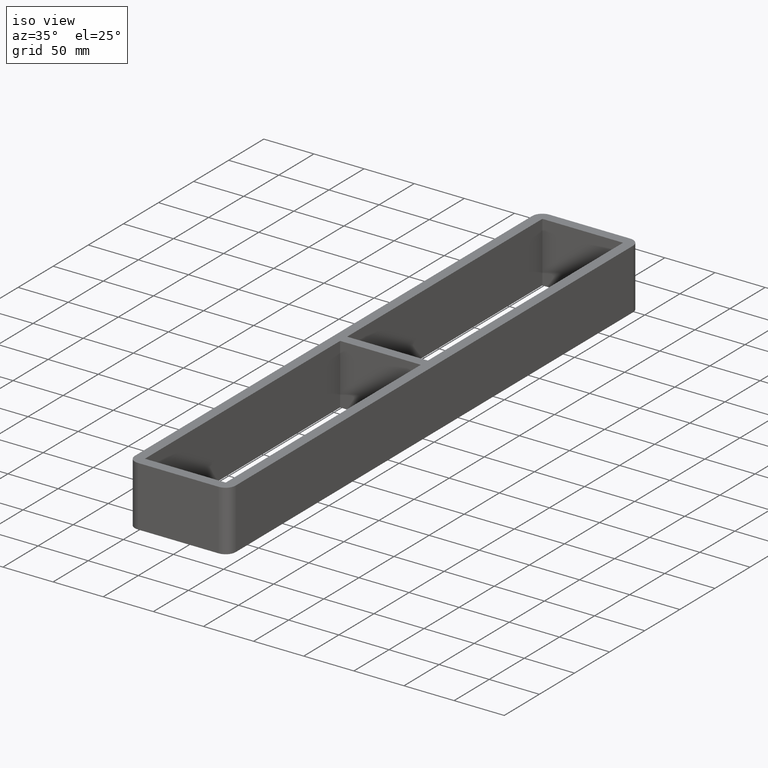
[diagram: clean part render]
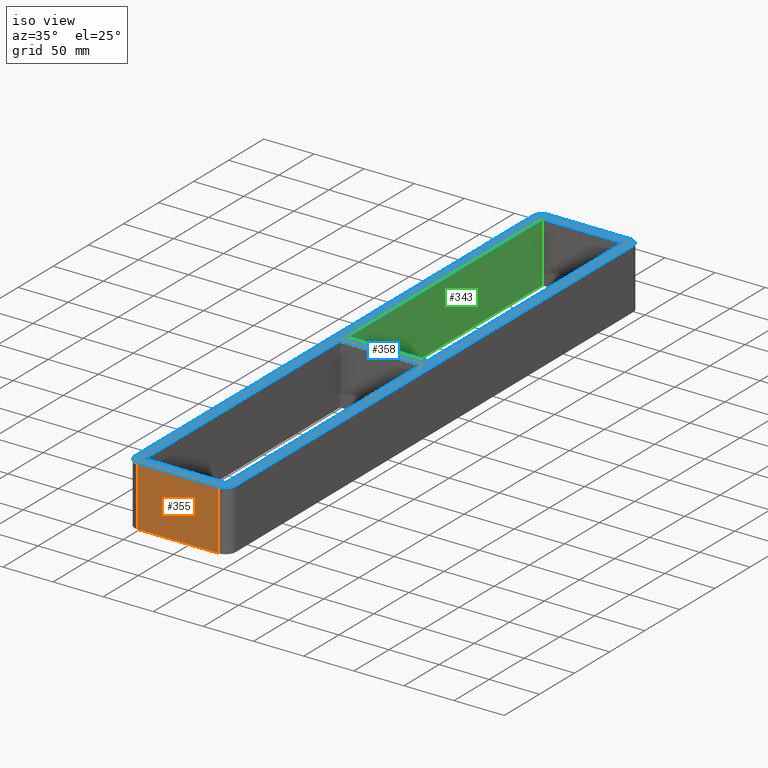
[diagram: same view with three faces highlighted in distinct colors, each labeled with its STEP entity id]
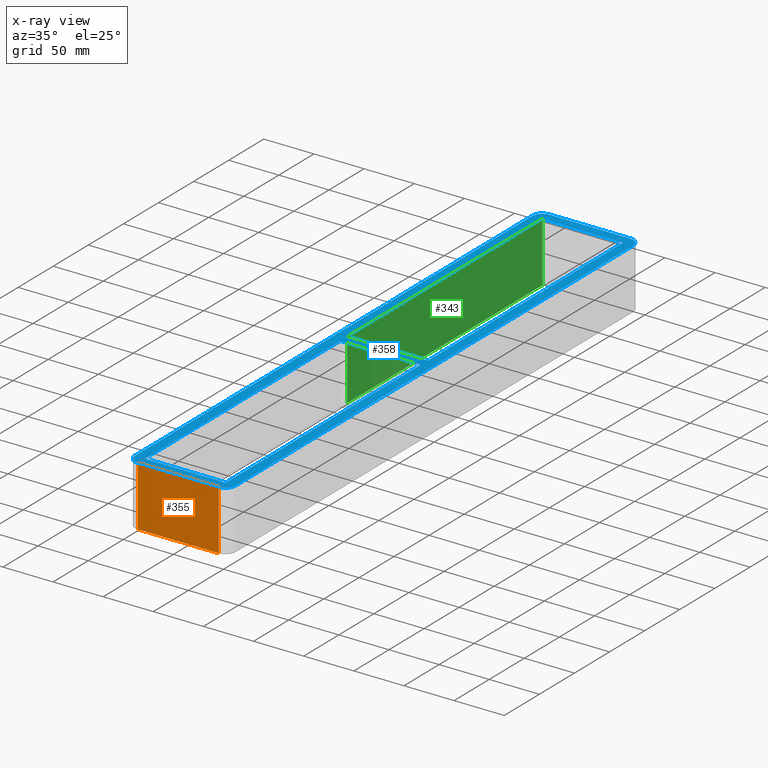
[diagram: x-ray of the same camera — body ghosted, the three highlighted faces saturated]
A machine part, iso view with three faces highlighted in distinct colors.
The next image is the same camera in x-ray (body ghosted, the three faces saturated) — at least one of them is partly hidden behind the body in this view.
Their STEP definitions:

[orange] entity #355 — the highlighted planar face has unit normal (0, -1, 0).
#45=FACE_OUTER_BOUND('',#65,.T.);
#65=EDGE_LOOP('',(#299,#300,#301,#302));
#101=LINE('',#569,#141);
#106=LINE('',#585,#146);
#107=LINE('',#589,#147);
#108=LINE('',#590,#148);
#141=VECTOR('',#465,10.);
#146=VECTOR('',#482,10.);
#147=VECTOR('',#487,10.);
#148=VECTOR('',#488,10.);
#174=VERTEX_POINT('',#566);
#175=VERTEX_POINT('',#568);
#180=VERTEX_POINT('',#584);
#181=VERTEX_POINT('',#588);
#216=EDGE_CURVE('',#174,#175,#101,.T.);
#224=EDGE_CURVE('',#175,#180,#106,.T.);
#226=EDGE_CURVE('',#181,#174,#107,.T.);
#227=EDGE_CURVE('',#180,#181,#108,.T.);
#299=ORIENTED_EDGE('',*,*,#224,.F.);
#300=ORIENTED_EDGE('',*,*,#216,.F.);
#301=ORIENTED_EDGE('',*,*,#226,.F.);
#302=ORIENTED_EDGE('',*,*,#227,.F.);
#338=PLANE('',#400);
#355=ADVANCED_FACE('',(#45),#338,.T.);
#400=AXIS2_PLACEMENT_3D('',#587,#485,#486);
#465=DIRECTION('',(-1.,0.,0.));
#482=DIRECTION('',(0.,0.,1.));
#485=DIRECTION('center_axis',(0.,-1.,0.));
#486=DIRECTION('ref_axis',(-1.,0.,0.));
#487=DIRECTION('',(0.,0.,-1.));
#488=DIRECTION('',(1.,0.,0.));
#566=CARTESIAN_POINT('',(40.2499999999998,-293.000000000001,-60.));
#568=CARTESIAN_POINT('',(-40.2500000000001,-293.000000000001,-60.));
#569=CARTESIAN_POINT('',(-50.2500000000001,-293.000000000001,-60.));
#584=CARTESIAN_POINT('',(-40.2500000000001,-293.000000000001,0.));
#585=CARTESIAN_POINT('',(-40.2500000000001,-293.000000000001,0.));
#587=CARTESIAN_POINT('Origin',(50.2499999999998,-293.000000000001,0.));
#588=CARTESIAN_POINT('',(40.2499999999998,-293.000000000001,0.));
#589=CARTESIAN_POINT('',(40.2499999999998,-293.000000000001,0.));
#590=CARTESIAN_POINT('',(-50.2500000000001,-293.000000000001,0.));

[blue] entity #358 — the highlighted planar face has unit normal (0, 0, 1).
#17=FACE_BOUND('',#69,.T.);
#18=FACE_BOUND('',#70,.T.);
#20=CIRCLE('',#389,10.);
#24=CIRCLE('',#396,10.);
#25=CIRCLE('',#399,10.);
#26=CIRCLE('',#402,10.);
#48=FACE_OUTER_BOUND('',#68,.T.);
#68=EDGE_LOOP('',(#311,#312,#313,#314,#315,#316,#317,#318));
#69=EDGE_LOOP('',(#319,#320,#321,#322));
#70=EDGE_LOOP('',(#323,#324,#325,#326));
#73=LINE('',#507,#113);
#76=LINE('',#513,#116);
#79=LINE('',#519,#119);
#82=LINE('',#523,#122);
#85=LINE('',#531,#125);
#88=LINE('',#537,#128);
#91=LINE('',#543,#131);
#94=LINE('',#547,#134);
#99=LINE('',#562,#139);
#105=LINE('',#582,#145);
#108=LINE('',#590,#148);
#110=LINE('',#596,#150);
#113=VECTOR('',#411,10.);
#116=VECTOR('',#416,10.);
#119=VECTOR('',#421,10.);
#122=VECTOR('',#426,10.);
#125=VECTOR('',#431,10.);
#128=VECTOR('',#436,10.);
#131=VECTOR('',#441,10.);
#134=VECTOR('',#446,10.);
#139=VECTOR('',#459,10.);
#145=VECTOR('',#479,10.);
#148=VECTOR('',#488,10.);
#150=VECTOR('',#496,10.);
#153=VERTEX_POINT('',#504);
#154=VERTEX_POINT('',#506);
#156=VERTEX_POINT('',#512);
#158=VERTEX_POINT('',#518);
#161=VERTEX_POINT('',#528);
#162=VERTEX_POINT('',#530);
#164=VERTEX_POINT('',#536);
#166=VERTEX_POINT('',#542);
#169=VERTEX_POINT('',#552);
#170=VERTEX_POINT('',#554);
#172=VERTEX_POINT('',#560);
#178=VERTEX_POINT('',#576);
#179=VERTEX_POINT('',#580);
#180=VERTEX_POINT('',#584);
#181=VERTEX_POINT('',#588);
#182=VERTEX_POINT('',#592);
#185=EDGE_CURVE('',#154,#153,#73,.T.);
#188=EDGE_CURVE('',#156,#154,#76,.T.);
#191=EDGE_CURVE('',#158,#156,#79,.T.);
#194=EDGE_CURVE('',#153,#158,#82,.T.);
#197=EDGE_CURVE('',#162,#161,#85,.T.);
#200=EDGE_CURVE('',#164,#162,#88,.T.);
#203=EDGE_CURVE('',#166,#164,#91,.T.);
#206=EDGE_CURVE('',#161,#166,#94,.T.);
#209=EDGE_CURVE('',#169,#170,#20,.T.);
#213=EDGE_CURVE('',#169,#172,#99,.T.);
#221=EDGE_CURVE('',#178,#172,#24,.T.);
#223=EDGE_CURVE('',#178,#179,#105,.T.);
#225=EDGE_CURVE('',#180,#179,#25,.T.);
#227=EDGE_CURVE('',#180,#181,#108,.T.);
#229=EDGE_CURVE('',#182,#181,#26,.T.);
#230=EDGE_CURVE('',#182,#170,#110,.T.);
#311=ORIENTED_EDGE('',*,*,#209,.F.);
#312=ORIENTED_EDGE('',*,*,#213,.T.);
#313=ORIENTED_EDGE('',*,*,#221,.F.);
#314=ORIENTED_EDGE('',*,*,#223,.T.);
#315=ORIENTED_EDGE('',*,*,#225,.F.);
#316=ORIENTED_EDGE('',*,*,#227,.T.);
#317=ORIENTED_EDGE('',*,*,#229,.F.);
#318=ORIENTED_EDGE('',*,*,#230,.T.);
#319=ORIENTED_EDGE('',*,*,#185,.T.);
#320=ORIENTED_EDGE('',*,*,#194,.T.);
#321=ORIENTED_EDGE('',*,*,#191,.T.);
#322=ORIENTED_EDGE('',*,*,#188,.T.);
#323=ORIENTED_EDGE('',*,*,#203,.T.);
#324=ORIENTED_EDGE('',*,*,#200,.T.);
#325=ORIENTED_EDGE('',*,*,#197,.T.);
#326=ORIENTED_EDGE('',*,*,#206,.T.);
#340=PLANE('',#404);
#358=ADVANCED_FACE('',(#48,#17,#18),#340,.T.);
#389=AXIS2_PLACEMENT_3D('',#555,#452,#453);
#396=AXIS2_PLACEMENT_3D('',#578,#474,#475);
#399=AXIS2_PLACEMENT_3D('',#586,#483,#484);
#402=AXIS2_PLACEMENT_3D('',#594,#492,#493);
#404=AXIS2_PLACEMENT_3D('',#597,#497,#498);
#411=DIRECTION('',(6.38977280359802E-17,-1.,0.));
#416=DIRECTION('',(1.,0.,0.));
#421=DIRECTION('',(-1.18530285506743E-14,1.,0.));
#426=DIRECTION('',(-1.,-4.4133089177646E-16,0.));
#431=DIRECTION('',(6.38977280359802E-17,-1.,0.));
#436=DIRECTION('',(1.,0.,0.));
#441=DIRECTION('',(-1.18530285506743E-14,1.,0.));
#446=DIRECTION('',(-1.,-4.4133089177646E-16,0.));
#452=DIRECTION('center_axis',(0.,0.,-1.));
#453=DIRECTION('ref_axis',(0.707106781186547,0.707106781186547,0.));
#459=DIRECTION('',(-1.,0.,0.));
#474=DIRECTION('center_axis',(0.,0.,-1.));
#475=DIRECTION('ref_axis',(-0.707106781186547,0.707106781186547,0.));
#479=DIRECTION('',(-2.42506053160444E-16,-1.,0.));
#483=DIRECTION('center_axis',(0.,0.,-1.));
#484=DIRECTION('ref_axis',(-0.707106781186547,-0.707106781186547,0.));
#488=DIRECTION('',(1.,0.,0.));
#492=DIRECTION('center_axis',(0.,0.,-1.));
#493=DIRECTION('ref_axis',(0.707106781186547,-0.707106781186547,0.));
#496=DIRECTION('',(0.,1.,0.));
#497=DIRECTION('center_axis',(0.,0.,1.));
#498=DIRECTION('ref_axis',(1.,0.,0.));
#504=CARTESIAN_POINT('',(40.2500000000036,4.99999999998959,0.));
#506=CARTESIAN_POINT('',(40.2500000000036,282.99999999999,0.));
#507=CARTESIAN_POINT('',(40.2500000000036,141.499999999994,0.));
#512=CARTESIAN_POINT('',(-40.2499999999997,282.99999999999,0.));
#513=CARTESIAN_POINT('',(-20.1249999999999,282.99999999999,0.));
#518=CARTESIAN_POINT('',(-40.2499999999964,4.99999999998956,0.));
#519=CARTESIAN_POINT('',(-40.2499999999963,2.4999999999939,0.));
#523=CARTESIAN_POINT('',(20.1250000000018,4.99999999998958,0.));
#528=CARTESIAN_POINT('',(40.2500000000036,-283.00000000001,0.));
#530=CARTESIAN_POINT('',(40.2500000000036,-5.00000000001044,0.));
#531=CARTESIAN_POINT('',(40.2500000000036,-2.50000000000586,0.));
#536=CARTESIAN_POINT('',(-40.2499999999997,-5.00000000001044,0.));
#537=CARTESIAN_POINT('',(-20.1249999999999,-5.00000000001044,0.));
#542=CARTESIAN_POINT('',(-40.2499999999964,-283.00000000001,0.));
#543=CARTESIAN_POINT('',(-40.249999999998,-141.500000000006,0.));
#547=CARTESIAN_POINT('',(20.1250000000018,-283.00000000001,0.));
#552=CARTESIAN_POINT('',(40.2499999999998,292.999999999999,0.));
#554=CARTESIAN_POINT('',(50.2499999999998,282.999999999999,0.));
#555=CARTESIAN_POINT('Origin',(40.2499999999998,282.999999999999,0.));
#560=CARTESIAN_POINT('',(-40.2499999999999,292.999999999999,0.));
#562=CARTESIAN_POINT('',(50.2499999999998,292.999999999999,0.));
#576=CARTESIAN_POINT('',(-50.2499999999999,282.999999999999,0.));
#578=CARTESIAN_POINT('Origin',(-40.2499999999999,282.999999999999,0.));
#580=CARTESIAN_POINT('',(-50.2500000000001,-283.000000000001,0.));
#582=CARTESIAN_POINT('',(-50.2499999999999,292.999999999999,0.));
#584=CARTESIAN_POINT('',(-40.2500000000001,-293.000000000001,0.));
#586=CARTESIAN_POINT('Origin',(-40.2500000000001,-283.000000000001,0.));
#588=CARTESIAN_POINT('',(40.2499999999998,-293.000000000001,0.));
#590=CARTESIAN_POINT('',(-50.2500000000001,-293.000000000001,0.));
#592=CARTESIAN_POINT('',(50.2499999999998,-283.000000000001,0.));
#594=CARTESIAN_POINT('Origin',(40.2499999999998,-283.000000000001,0.));
#596=CARTESIAN_POINT('',(50.2499999999998,-293.000000000001,0.));
#597=CARTESIAN_POINT('Origin',(-1.05572263725463E-13,-1.27592360889769E-12,
0.));

[green] entity #343 — the highlighted planar face has unit normal (-1, -0, 0).
#33=FACE_OUTER_BOUND('',#51,.T.);
#51=EDGE_LOOP('',(#239,#240,#241,#242));
#77=LINE('',#514,#117);
#78=LINE('',#517,#118);
#79=LINE('',#519,#119);
#80=LINE('',#520,#120);
#117=VECTOR('',#417,10.);
#118=VECTOR('',#420,10.);
#119=VECTOR('',#421,10.);
#120=VECTOR('',#422,10.);
#155=VERTEX_POINT('',#510);
#156=VERTEX_POINT('',#512);
#157=VERTEX_POINT('',#516);
#158=VERTEX_POINT('',#518);
#189=EDGE_CURVE('',#156,#155,#77,.T.);
#190=EDGE_CURVE('',#155,#157,#78,.T.);
#191=EDGE_CURVE('',#158,#156,#79,.T.);
#192=EDGE_CURVE('',#158,#157,#80,.T.);
#239=ORIENTED_EDGE('',*,*,#190,.F.);
#240=ORIENTED_EDGE('',*,*,#189,.F.);
#241=ORIENTED_EDGE('',*,*,#191,.F.);
#242=ORIENTED_EDGE('',*,*,#192,.T.);
#329=PLANE('',#381);
#343=ADVANCED_FACE('',(#33),#329,.F.);
#381=AXIS2_PLACEMENT_3D('',#515,#418,#419);
#417=DIRECTION('',(0.,0.,-1.));
#418=DIRECTION('center_axis',(-1.,-1.18530285506743E-14,0.));
#419=DIRECTION('ref_axis',(-1.18530285506743E-14,1.,0.));
#420=DIRECTION('',(1.18530285506743E-14,-1.,0.));
#421=DIRECTION('',(-1.18530285506743E-14,1.,0.));
#422=DIRECTION('',(0.,0.,-1.));
#510=CARTESIAN_POINT('',(-40.2499999999997,282.99999999999,-60.));
#512=CARTESIAN_POINT('',(-40.2499999999997,282.99999999999,0.));
#514=CARTESIAN_POINT('',(-40.2499999999997,282.99999999999,0.));
#515=CARTESIAN_POINT('Origin',(-40.2499999999964,4.99999999998956,0.));
#516=CARTESIAN_POINT('',(-40.2499999999964,4.99999999998956,-60.));
#517=CARTESIAN_POINT('',(-40.2499999999963,2.4999999999939,-60.));
#518=CARTESIAN_POINT('',(-40.2499999999964,4.99999999998956,0.));
#519=CARTESIAN_POINT('',(-40.2499999999963,2.4999999999939,0.));
#520=CARTESIAN_POINT('',(-40.2499999999964,4.99999999998956,0.));